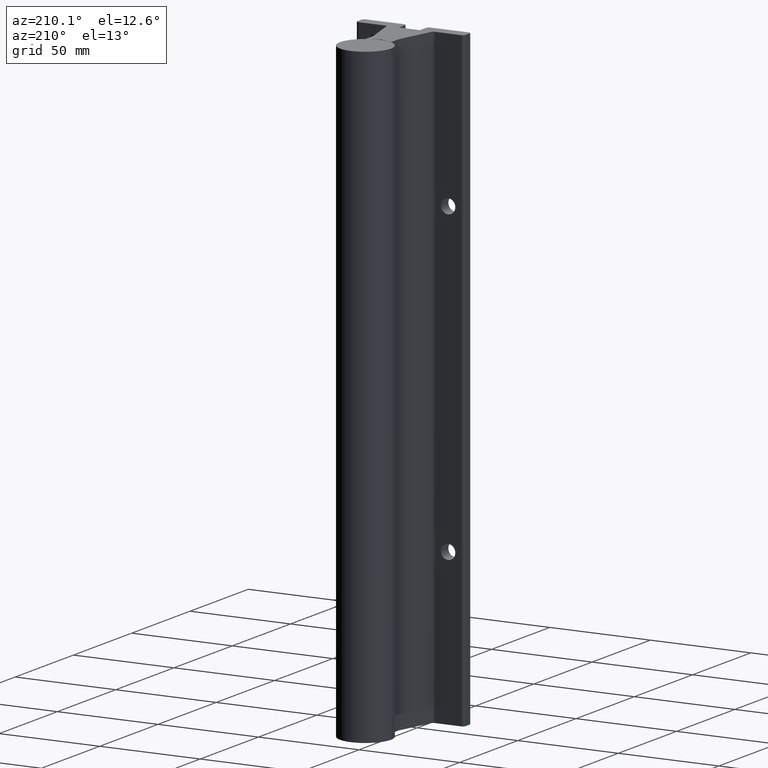
[diagram: clean part render]
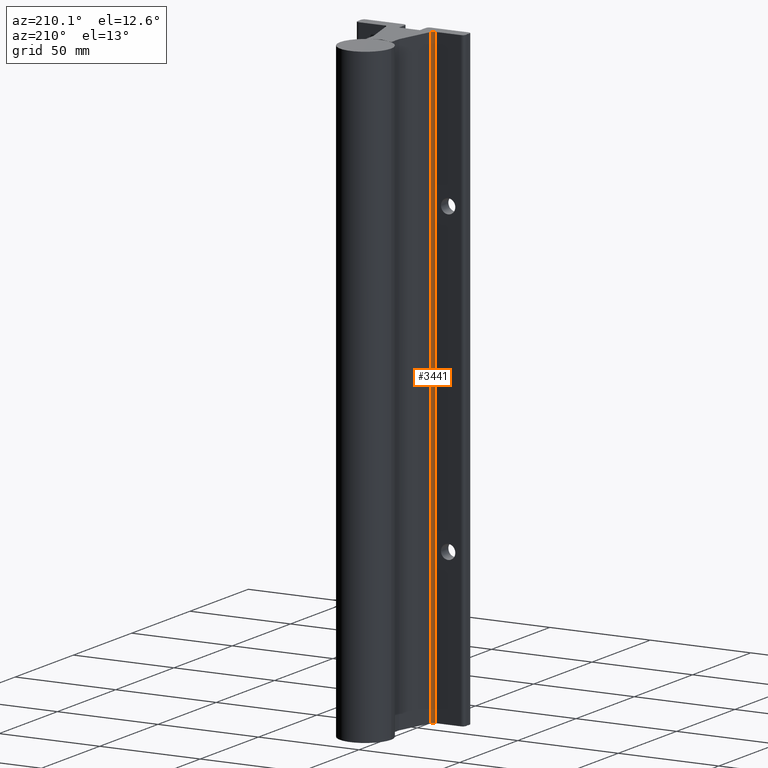
[diagram: same view with one face highlighted and labeled with its STEP entity id]
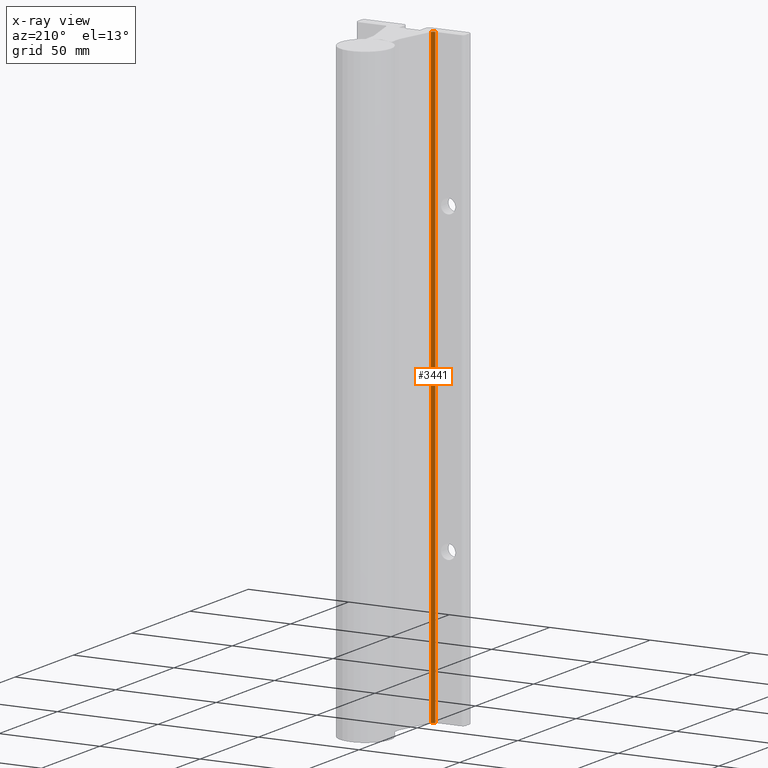
[diagram: x-ray of the same camera — body ghosted, the highlighted face saturated]
A machine part, auxiliary view. The second image highlights one B-rep face of the part: STEP entity #3441.
The next image is the same camera in x-ray: the body ghosted, the highlighted face saturated — about 0% of this face is hidden behind the body in this view.
In plain terms, the highlighted cylindrical surface (edge-blend (fillet) strip) has radius 1.5875 mm, axis along (0, 0, 1).
Its self-contained STEP definition (entity closure, byte-faithful):
#60 = VERTEX_POINT ( 'NONE', #1663 ) ;
#398 = VERTEX_POINT ( 'NONE', #4316 ) ;
#439 = CARTESIAN_POINT ( 'NONE',  ( -0.4367880495033031329, 0.2973798815999998402, -14.49573696227415098 ) ) ;
#774 = VERTEX_POINT ( 'NONE', #4009 ) ;
#1058 = AXIS2_PLACEMENT_3D ( 'NONE', #5005, #4629, #4559 ) ;
#1124 = ORIENTED_EDGE ( 'NONE', *, *, #3167, .F. ) ;
#1322 = DIRECTION ( 'NONE',  ( 0.000000000000000000, 0.000000000000000000, 1.000000000000000000 ) ) ;
#1531 = AXIS2_PLACEMENT_3D ( 'NONE', #4574, #4074, #2716 ) ;
#1622 = DIRECTION ( 'NONE',  ( 1.000000000000000000, 0.000000000000000000, 0.000000000000000000 ) ) ;
#1663 = CARTESIAN_POINT ( 'NONE',  ( -0.4367880495033029109, 0.2973798815999998402, -12.00000000000000178 ) ) ;
#1706 = VERTEX_POINT ( 'NONE', #4399 ) ;
#1797 = EDGE_CURVE ( 'NONE', #1706, #60, #4777, .T. ) ;
#1822 = ORIENTED_EDGE ( 'NONE', *, *, #4624, .T. ) ;
#2422 = EDGE_CURVE ( 'NONE', #774, #398, #5526, .T. ) ;
#2553 = DIRECTION ( 'NONE',  ( -0.000000000000000000, -0.000000000000000000, -1.000000000000000000 ) ) ;
#2584 = VECTOR ( 'NONE', #4622, 39.37007874015748143 ) ;
#2716 = DIRECTION ( 'NONE',  ( 1.000000000000000000, 0.000000000000000000, 0.000000000000000000 ) ) ;
#3157 = LINE ( 'NONE', #3511, #5562 ) ;
#3167 = EDGE_CURVE ( 'NONE', #60, #774, #3692, .T. ) ;
#3441 = ADVANCED_FACE ( 'NONE', ( #5298 ), #5392, .F. ) ;
#3511 = CARTESIAN_POINT ( 'NONE',  ( -0.4974315324033023455, 0.2499999999999998057, -14.49573696227415098 ) ) ;
#3692 = LINE ( 'NONE', #439, #2584 ) ;
#3843 = ORIENTED_EDGE ( 'NONE', *, *, #2422, .F. ) ;
#4009 = CARTESIAN_POINT ( 'NONE',  ( -0.4367880495033028554, 0.2973798815999998402, 0.000000000000000000 ) ) ;
#4010 = EDGE_LOOP ( 'NONE', ( #4662, #1822, #3843, #1124 ) ) ;
#4074 = DIRECTION ( 'NONE',  ( 0.000000000000000000, 0.000000000000000000, 1.000000000000000000 ) ) ;
#4316 = CARTESIAN_POINT ( 'NONE',  ( -0.4974315324033023455, 0.2499999999999995837, 0.000000000000000000 ) ) ;
#4399 = CARTESIAN_POINT ( 'NONE',  ( -0.4974315324033023455, 0.2499999999999995837, -12.00000000000000178 ) ) ;
#4559 = DIRECTION ( 'NONE',  ( 1.000000000000000000, 0.000000000000000000, 0.000000000000000000 ) ) ;
#4574 = CARTESIAN_POINT ( 'NONE',  ( -0.4974315324142474792, 0.3124999999999997224, -14.49573696227415098 ) ) ;
#4622 = DIRECTION ( 'NONE',  ( 0.000000000000000000, 0.000000000000000000, 1.000000000000000000 ) ) ;
#4624 = EDGE_CURVE ( 'NONE', #1706, #398, #3157, .T. ) ;
#4629 = DIRECTION ( 'NONE',  ( 0.000000000000000000, 0.000000000000000000, 1.000000000000000000 ) ) ;
#4662 = ORIENTED_EDGE ( 'NONE', *, *, #1797, .F. ) ;
#4777 = CIRCLE ( 'NONE', #1058, 0.06250000000000015266 ) ;
#5005 = CARTESIAN_POINT ( 'NONE',  ( -0.4974315324142474792, 0.3124999999999997224, -12.00000000000000178 ) ) ;
#5298 = FACE_OUTER_BOUND ( 'NONE', #4010, .T. ) ;
#5332 = AXIS2_PLACEMENT_3D ( 'NONE', #5829, #2553, #1622 ) ;
#5392 = CYLINDRICAL_SURFACE ( 'NONE', #1531, 0.06250000000000015266 ) ;
#5526 = CIRCLE ( 'NONE', #5332, 0.06250000000000015266 ) ;
#5562 = VECTOR ( 'NONE', #1322, 39.37007874015748143 ) ;
#5829 = CARTESIAN_POINT ( 'NONE',  ( -0.4974315324142474792, 0.3124999999999997224, 0.000000000000000000 ) ) ;